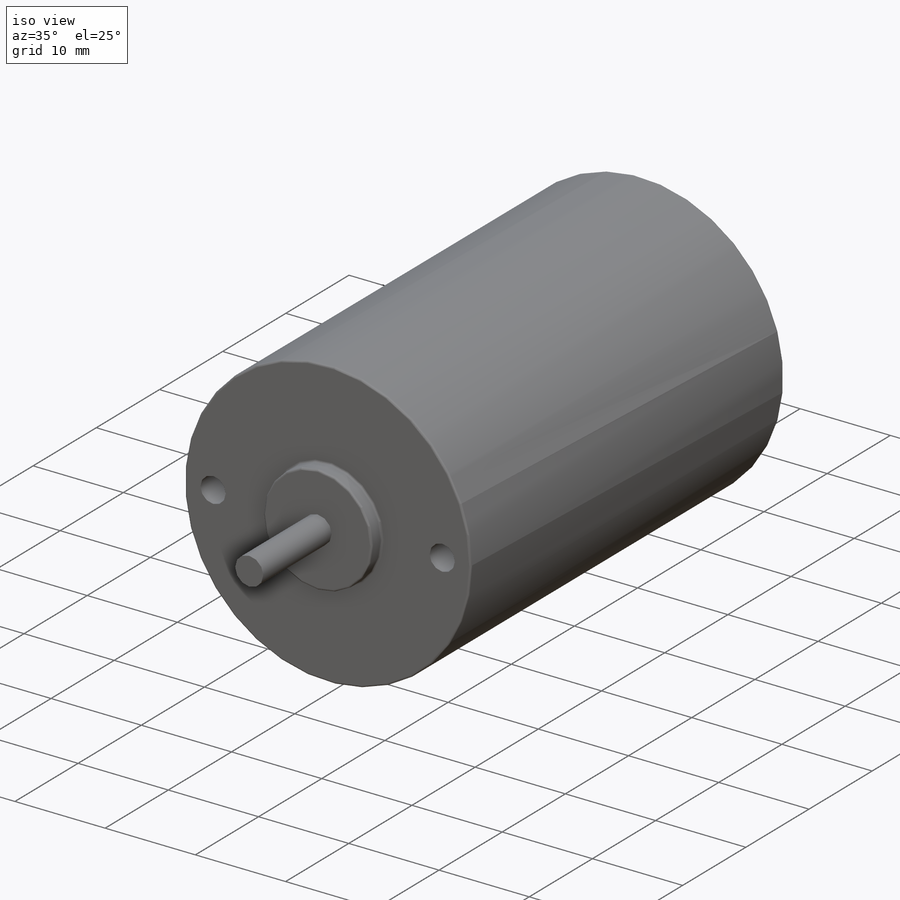
[diagram: iso view]
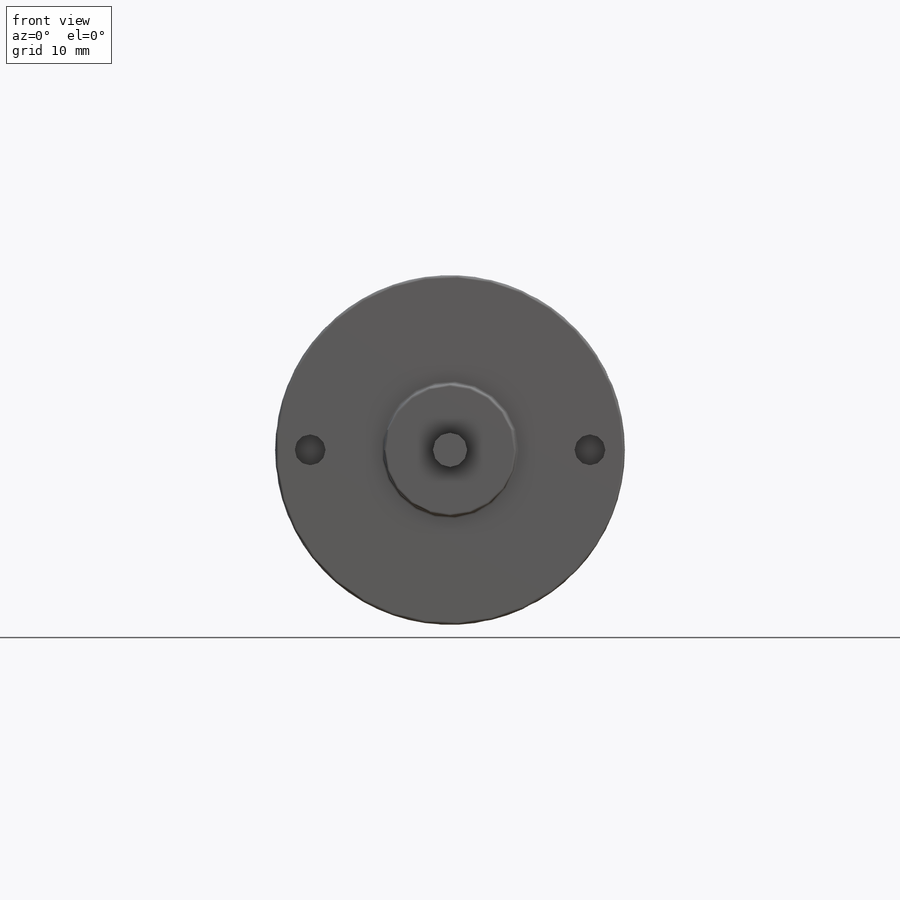
[diagram: front view]
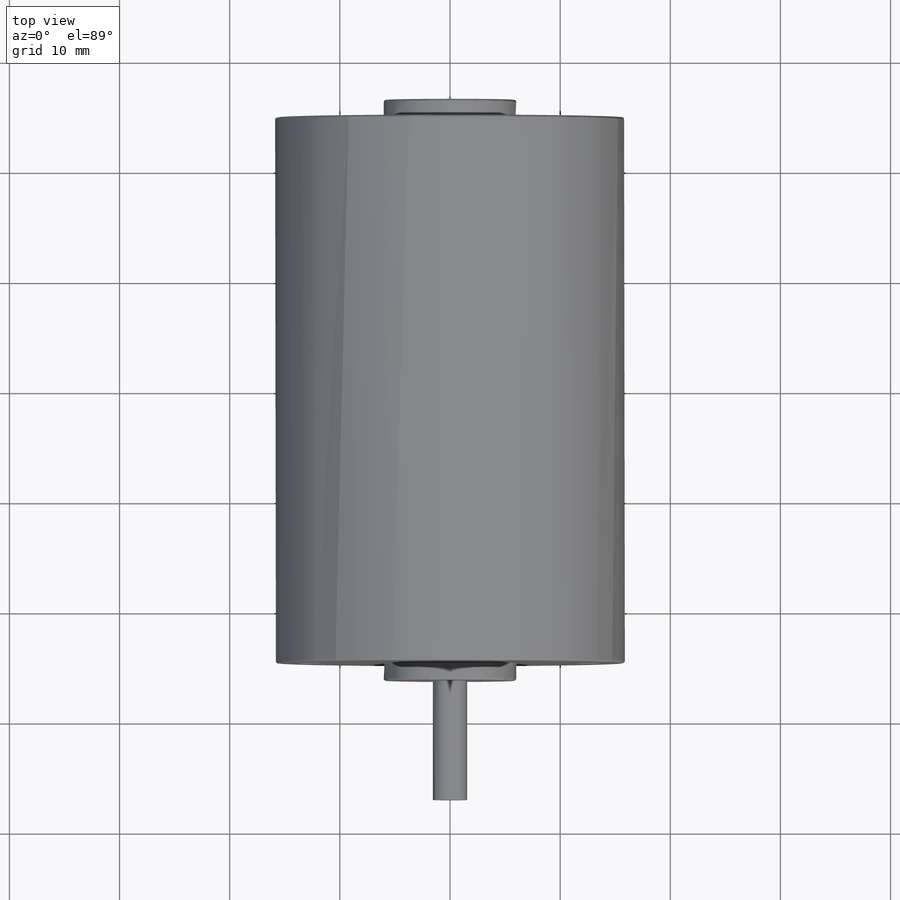
[diagram: top view]
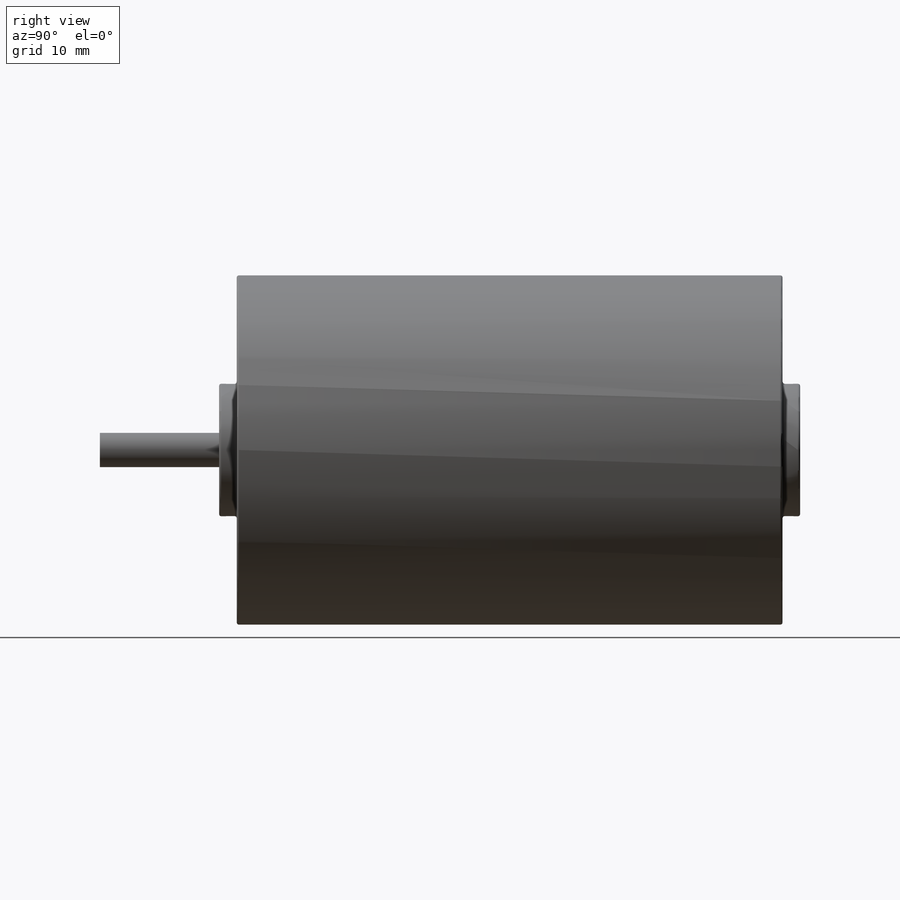
[diagram: right view]
SOLIDWORKS PART (.sldprt)
format: sldprt  version: not decoded by parser v0  size: 201,216 bytes
history: native  units: mm
features: sketch x3, material x1, revolve x1, extrude x1, fillet x1, cut_extrude x1 (+11 scaffold rows collapsed)
feature tree (19):
  scaffold x11  (default folders/planes/origin — collapsed)
  material  "Gray Cast Iron"
  sketch  "Sketch2"  dims[D1=3.1mm D2=31.75mm D3=49.55mm D4=12.03mm D5=52.75mm]
  revolve  "body"  Angle=360deg
  sketch  "Sketch4"  dims[D1=3.11mm]
  extrude  "shaft"  Depth=37.2mm
  fillet  "Fillet1"  Radius=0.2mm
  sketch  "Sketch6"  dims[D1=2.8mm D2=25.4mm D3=12.7mm]
  cut_extrude  "#6-32 threaded"  Depth=5mm
decode coverage: 7 of 7 modeling features carry decoded parameters
note: suppression state not decoded; provenance and decode notes live in map.json
